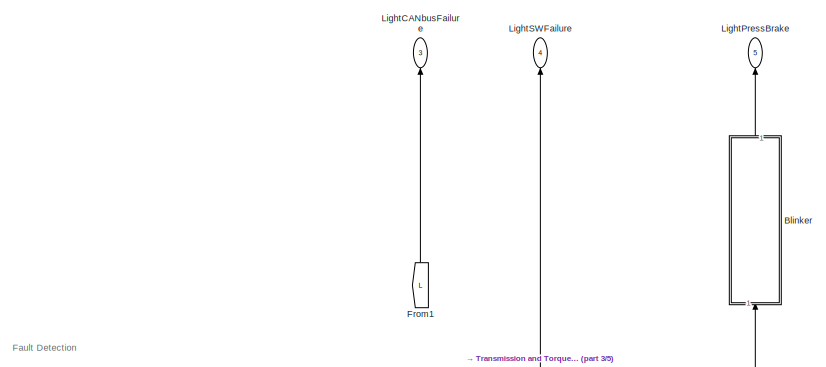
[diagram: root canvas - part 1/5, top left region]
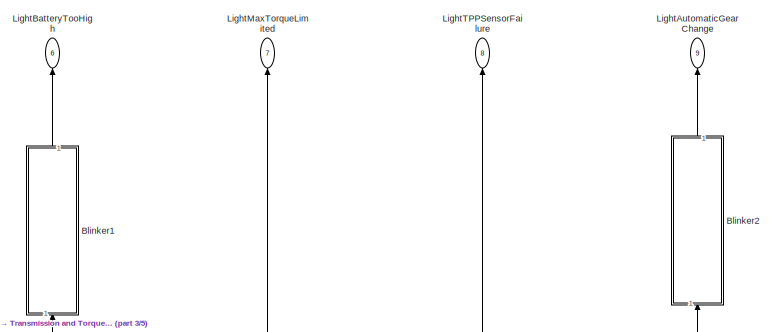
[diagram: root canvas - part 2/5, top center region]
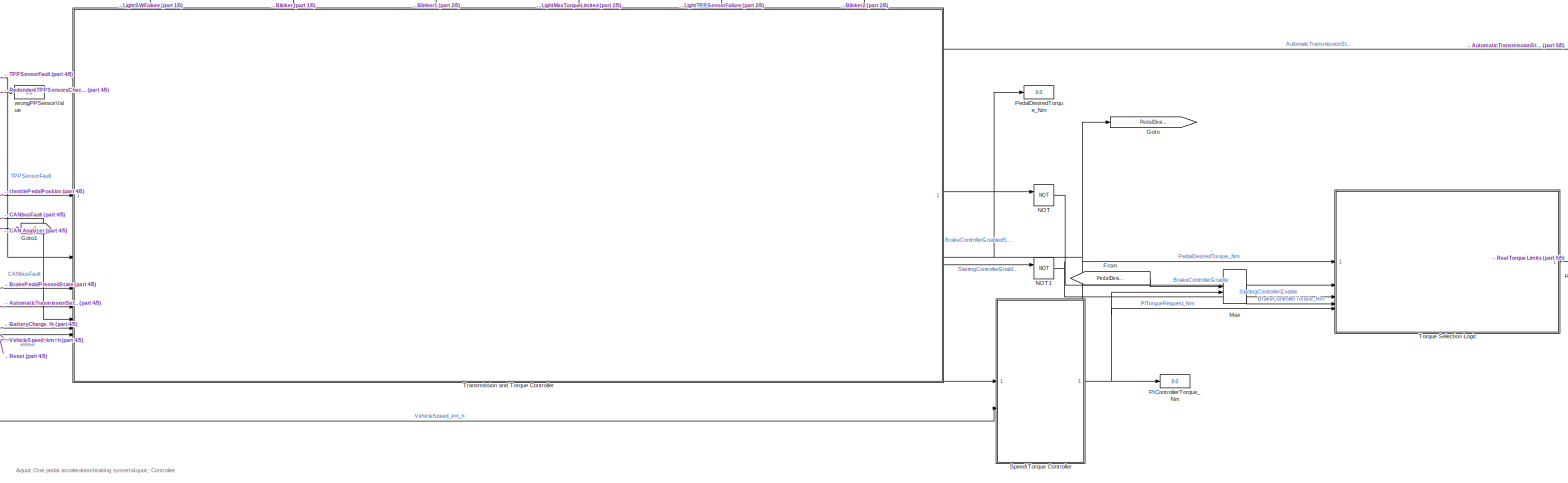
[diagram: root canvas - part 3/5, full width, bottom band]
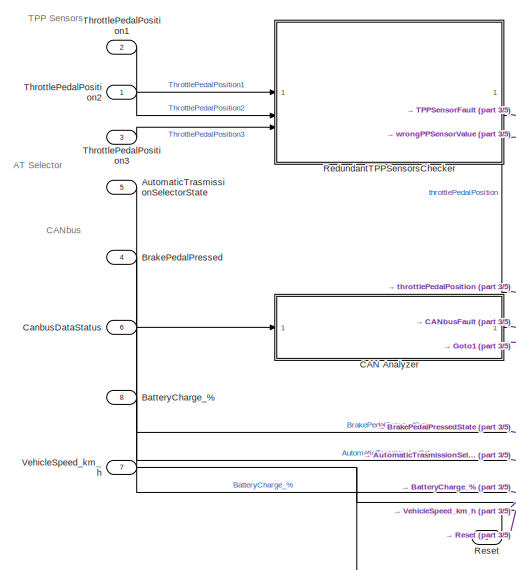
[diagram: root canvas - part 4/5, middle left region]
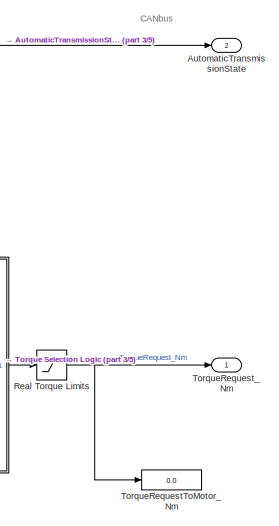
[diagram: root canvas - part 5/5, middle right region]
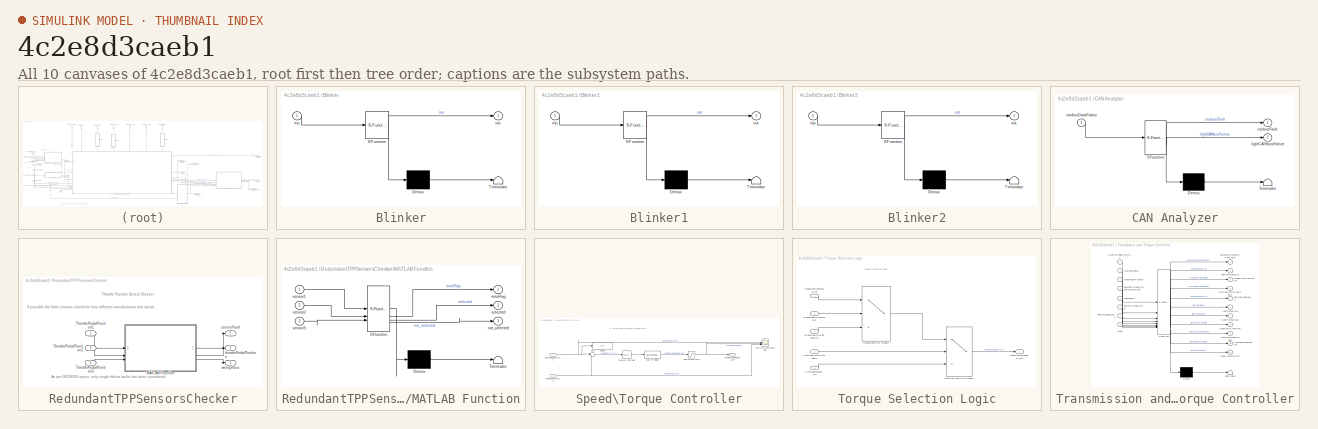
[diagram: thumbnail index - all 10 canvases of the model, root first then tree order]
MODEL slx_4c2e8d3caeb1
KIND model
CONFIG AbsTol = auto
CONFIG EnableMultiTasking = off
CONFIG FixedStep = 1/100
CONFIG MaxStep = auto
CONFIG MinStep = auto
CONFIG RelTol = 1e-3
CONFIG SampleTimeConstraint = Unconstrained
CONFIG SolverName = FixedStepAuto
CONFIG StartTime = 0.0
CONFIG StopTime = 10.0
BLOCK [Outport] AutomaticTransmissionState
  OutDataTypeStr = Enum: TransmissionState
  Port = 2
BLOCK [Inport] AutomaticTrasmissionSelectorState
  OutDataTypeStr = Enum: TransmissionState
  Port = 5
BLOCK [Inport] BatteryCharge_%
  OutDataTypeStr = single
  Port = 8
  Unit = km/h
BLOCK [SubSystem] Blinker
  ErrorFcn = Stateflow.Translate.translate
  NameLocation = right
  PermitHierarchicalResolution = ExplicitOnly
  SFBlockType = Chart
  TreatAsAtomicUnit = on
BLOCK [Demux] Blinker/ Demux 
  Outputs = 1
BLOCK [S-Function] Blinker/ SFunction 
  EnableBusSupport = on
  FunctionName = sf_sfun
  PortCounts = [1 2]
  SFcnIsStateOwnerBlock = off
  SFunctionDeploymentMode = off
  Tag = Stateflow S-Function 4
BLOCK [Terminator] Blinker/ Terminator 
BLOCK [Inport] Blinker/inp
BLOCK [Outport] Blinker/out
BLOCK [SubSystem] Blinker1
  ErrorFcn = Stateflow.Translate.translate
  NameLocation = right
  PermitHierarchicalResolution = ExplicitOnly
  SFBlockType = Chart
  TreatAsAtomicUnit = on
BLOCK [Demux] Blinker1/ Demux 
  Outputs = 1
BLOCK [S-Function] Blinker1/ SFunction 
  EnableBusSupport = on
  FunctionName = sf_sfun
  PortCounts = [1 2]
  SFcnIsStateOwnerBlock = off
  SFunctionDeploymentMode = off
  Tag = Stateflow S-Function 5
BLOCK [Terminator] Blinker1/ Terminator 
BLOCK [Inport] Blinker1/inp
BLOCK [Outport] Blinker1/out
BLOCK [SubSystem] Blinker2
  ErrorFcn = Stateflow.Translate.translate
  NameLocation = right
  PermitHierarchicalResolution = ExplicitOnly
  SFBlockType = Chart
  TreatAsAtomicUnit = on
BLOCK [Demux] Blinker2/ Demux 
  Outputs = 1
BLOCK [S-Function] Blinker2/ SFunction 
  EnableBusSupport = on
  FunctionName = sf_sfun
  PortCounts = [1 2]
  SFcnIsStateOwnerBlock = off
  SFunctionDeploymentMode = off
  Tag = Stateflow S-Function 6
BLOCK [Terminator] Blinker2/ Terminator 
BLOCK [Inport] Blinker2/inp
BLOCK [Outport] Blinker2/out
BLOCK [Inport] BrakePedalPressed
  OutDataTypeStr = boolean
  Port = 4
BLOCK [SubSystem] CAN Analyzer
  ErrorFcn = Stateflow.Translate.translate
  PermitHierarchicalResolution = ExplicitOnly
  SFBlockType = Chart
  TreatAsAtomicUnit = on
BLOCK [Demux] CAN Analyzer/ Demux 
  Outputs = 1
BLOCK [S-Function] CAN Analyzer/ SFunction 
  EnableBusSupport = on
  FunctionName = sf_sfun
  PortCounts = [1 3]
  SFcnIsStateOwnerBlock = off
  SFunctionDeploymentMode = off
  Tag = Stateflow S-Function 1
BLOCK [Terminator] CAN Analyzer/ Terminator 
BLOCK [Inport] CAN Analyzer/canbusDataStatus
BLOCK [Outport] CAN Analyzer/canbusFault
BLOCK [Outport] CAN Analyzer/lightCANbusFailure
  Port = 2
BLOCK [Inport] CanbusDataStatus
  OutDataTypeStr = boolean
  Port = 6
  Unit = km/h
BLOCK [From] From
  GotoTag = PedalDesiredTorque
BLOCK [From] From1
  GotoTag = L
  NameLocation = right
BLOCK [Goto] Goto
  GotoTag = PedalDesiredTorque
BLOCK [Goto] Goto1
  GotoTag = L
BLOCK [Outport] LightAutomaticGearChange
  NameLocation = top
  OutDataTypeStr = boolean
  Port = 9
BLOCK [Outport] LightBatteryTooHigh
  NameLocation = top
  OutDataTypeStr = boolean
  Port = 6
BLOCK [Outport] LightCANbusFailure
  NameLocation = top
  OutDataTypeStr = boolean
  Port = 3
BLOCK [Outport] LightMaxTorqueLimited
  NameLocation = top
  OutDataTypeStr = boolean
  Port = 7
BLOCK [Outport] LightPressBrake
  NameLocation = top
  OutDataTypeStr = boolean
  Port = 5
BLOCK [Outport] LightSWFailure
  NameLocation = top
  OutDataTypeStr = boolean
  Port = 4
BLOCK [Outport] LightTPPSensorFailure
  NameLocation = top
  OutDataTypeStr = boolean
  Port = 8
BLOCK [MinMax] Max
  Function = max
  Inputs = 2
BLOCK [Logic] NOT
  AllPortsSameDT = off
  IconShape = distinctive
  Operator = NOT
  OutDataTypeStr = boolean
BLOCK [Logic] NOT1
  AllPortsSameDT = off
  IconShape = distinctive
  Operator = NOT
  OutDataTypeStr = boolean
BLOCK [Display] PIControllerTorque_Nm
  Decimation = 1
BLOCK [Display] PedalDesiredTorque_Nm
  Decimation = 1
BLOCK [Saturate] Real Torque Limits
  LowerLimit = -MAX_TORQUE_REVERSE
  UpperLimit = MAX_TORQUE
BLOCK [SubSystem] RedundantTPPSensorsChecker
  NameLocation = top
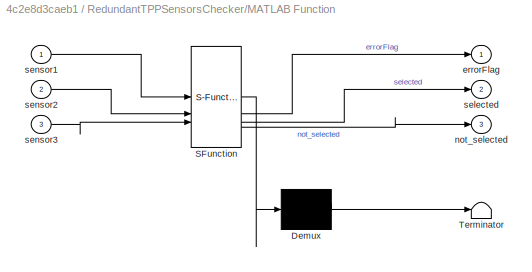
BLOCK [SubSystem] RedundantTPPSensorsChecker/MATLAB Function
  ErrorFcn = Stateflow.Translate.translate
  LibrarySourceBlock = simulink/User-Defined\nFunctions/MATLAB Function
  PermitHierarchicalResolution = ExplicitOnly
  SFBlockType = MATLAB Function
  TreatAsAtomicUnit = on
BLOCK [Demux] RedundantTPPSensorsChecker/MATLAB Function/ Demux 
  Outputs = 1
BLOCK [S-Function] RedundantTPPSensorsChecker/MATLAB Function/ SFunction 
  EnableBusSupport = on
  FunctionName = sf_sfun
  PortCounts = [3 4]
  SFcnIsStateOwnerBlock = off
  SFunctionDeploymentMode = off
  Tag = Stateflow S-Function 2
BLOCK [Terminator] RedundantTPPSensorsChecker/MATLAB Function/ Terminator 
BLOCK [Outport] RedundantTPPSensorsChecker/MATLAB Function/errorFlag
BLOCK [Outport] RedundantTPPSensorsChecker/MATLAB Function/not_selected
  Port = 3
BLOCK [Outport] RedundantTPPSensorsChecker/MATLAB Function/selected
  Port = 2
BLOCK [Inport] RedundantTPPSensorsChecker/MATLAB Function/sensor1
BLOCK [Inport] RedundantTPPSensorsChecker/MATLAB Function/sensor2
  Port = 2
BLOCK [Inport] RedundantTPPSensorsChecker/MATLAB Function/sensor3
  Port = 3
BLOCK [Inport] RedundantTPPSensorsChecker/ThrottlePedalPosition1
BLOCK [Inport] RedundantTPPSensorsChecker/ThrottlePedalPosition2
  Port = 2
BLOCK [Inport] RedundantTPPSensorsChecker/ThrottlePedalPosition3
  Port = 3
BLOCK [Outport] RedundantTPPSensorsChecker/sensorFault
  OutDataTypeStr = boolean
  Port = 2
BLOCK [Outport] RedundantTPPSensorsChecker/throttlePedalPosition
BLOCK [Outport] RedundantTPPSensorsChecker/wrongValue
  Port = 3
BLOCK [Inport] Reset
  OutDataTypeStr = boolean
  Port = 9
  Unit = km/h
BLOCK [SubSystem] Speed\Torque Controller
BLOCK [DataTypeConversion] Speed\Torque Controller/Cast To Single
  OutDataTypeStr = single
  RndMeth = Floor
  SaturateOnIntegerOverflow = off
BLOCK [Inport] Speed\Torque Controller/DesiredSpeed_km_h
BLOCK [Display] Speed\Torque Controller/Display
  Decimation = 1
BLOCK [Outport] Speed\Torque Controller/IdealTorqueRequest_Nm
BLOCK [Saturate] Speed\Torque Controller/Real Torque Limits
  LowerLimit = -MAX_TORQUE_REVERSE
  UpperLimit = MAX_TORQUE
BLOCK [Scope] Speed\Torque Controller/Ref\Out\Command Plot
  Floating = off
  NumInputPorts = 3
  ScopeSpecificationString = Simulink.scopes.TimeScopeBlockCfg('CurrentConfiguration', extmgr.ConfigurationSet(extmgr.Configuration('Core','General UI',true),extmgr.Configuration('Core','Source UI',true),extmgr.Configuration('Sources','WiredSimulink',true,'DataLoggingVariableName','ScopeData2'),extmgr.Configuration('Visuals','Time Domain',true,'SerializedDisplays',{struct('MinYLimReal','-0.97538','MaxYLimReal','81.85781','YLa...<+1531ch>
BLOCK [Sum] Speed\Torque Controller/Sum
  Inputs = |+-
BLOCK [Reference] Speed\Torque Controller/Tuned PI Controller  REF=slpidlib/PID Controller
  LibrarySourceBlock = simulink/Continuous/PID Controller
  SourceBlock = slpidlib/PID Controller
  SourceType = PID 1dof
BLOCK [Inport] Speed\Torque Controller/VehicleSpeed_km_h
  Port = 2
BLOCK [Inport] ThrottlePedalPosition1
  OutDataTypeStr = single
  Port = 2
BLOCK [Inport] ThrottlePedalPosition2
  OutDataTypeStr = single
BLOCK [Inport] ThrottlePedalPosition3
  OutDataTypeStr = single
  Port = 3
BLOCK [SubSystem] Torque Selection Logic
BLOCK [Switch] Torque Selection Logic/BrakeController Enable
  Criteria = u2 > Threshold
  InputSameDT = off
  SaturateOnIntegerOverflow = off
BLOCK [Inport] Torque Selection Logic/BrakeControllerEnable
  Port = 2
BLOCK [Inport] Torque Selection Logic/BrakeControllerTorque_Nm
  Port = 4
BLOCK [Outport] Torque Selection Logic/MotorTorqueRequest_Nm
BLOCK [Inport] Torque Selection Logic/PITorqueRequest_Nm
  Port = 5
BLOCK [Inport] Torque Selection Logic/PedalDesiredTorque_Nm
BLOCK [Switch] Torque Selection Logic/Starting Controller Enable
  Criteria = u2 > Threshold
  InputSameDT = off
  SaturateOnIntegerOverflow = off
BLOCK [Inport] Torque Selection Logic/StartingControllerEnable
  Port = 3
BLOCK [Display] TorqueRequestToMotor_Nm
  Decimation = 1
BLOCK [Outport] TorqueRequest_Nm
  OutDataTypeStr = single
  Unit = N*m
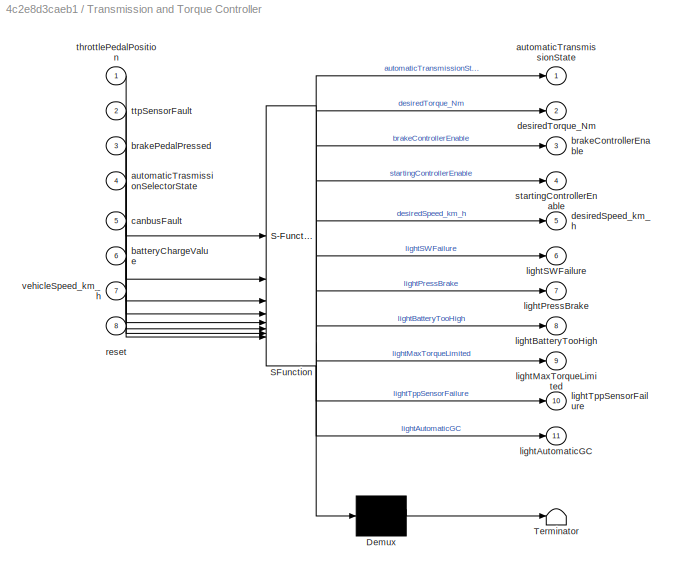
BLOCK [SubSystem] Transmission and Torque Controller
  ErrorFcn = Stateflow.Translate.translate
  PermitHierarchicalResolution = ExplicitOnly
  PortSchema = {"entries":[{"content":{"sides":[{"content":{"connectorIds":["In1","In2","In4","In3","In5","In6","In7","In8"]},"type":"ConnectorPlacement.EquallySpacedRectSide","uuid":"0c8aad20-bedd-441c-a5c9-bebe8b868021"},{"content":{"connectorIds":["Out1","Out2","Out3","Out4","Out5"],"side":"RIGHT"},"type":"ConnectorPlacement.EquallySpacedRectSide","uuid":"1881f9b3-9ea6-444d-9c49-eff5d4926a82"},{"content":{"co...<+353ch>
  SFBlockType = Chart
  TreatAsAtomicUnit = on
BLOCK [Demux] Transmission and Torque Controller/ Demux 
  Outputs = 1
BLOCK [S-Function] Transmission and Torque Controller/ SFunction 
  EnableBusSupport = on
  FunctionName = sf_sfun
  Parameters = MAX_SPEED_BACKWARD,MAX_SPEED_FORWARD,MAX_TORQUE,MAX_TORQUE_REVERSE
  PortCounts = [8 12]
  SFcnIsStateOwnerBlock = off
  SFunctionDeploymentMode = off
  Tag = Stateflow S-Function 3
BLOCK [Terminator] Transmission and Torque Controller/ Terminator 
BLOCK [Outport] Transmission and Torque Controller/automaticTransmissionState
BLOCK [Inport] Transmission and Torque Controller/automaticTrasmissionSelectorState
  Port = 4
BLOCK [Inport] Transmission and Torque Controller/batteryChargeValue
  Port = 6
BLOCK [Outport] Transmission and Torque Controller/brakeControllerEnable
  Port = 3
BLOCK [Inport] Transmission and Torque Controller/brakePedalPressed
  Port = 3
BLOCK [Inport] Transmission and Torque Controller/canbusFault
  Port = 5
BLOCK [Outport] Transmission and Torque Controller/desiredSpeed_km_h
  Port = 5
BLOCK [Outport] Transmission and Torque Controller/desiredTorque_Nm
  Port = 2
BLOCK [Outport] Transmission and Torque Controller/lightAutomaticGC
  Port = 11
BLOCK [Outport] Transmission and Torque Controller/lightBatteryTooHigh
  Port = 8
BLOCK [Outport] Transmission and Torque Controller/lightMaxTorqueLimited
  Port = 9
BLOCK [Outport] Transmission and Torque Controller/lightPressBrake
  Port = 7
BLOCK [Outport] Transmission and Torque Controller/lightSWFailure
  Port = 6
BLOCK [Outport] Transmission and Torque Controller/lightTppSensorFailure
  Port = 10
BLOCK [Inport] Transmission and Torque Controller/reset
  Port = 8
BLOCK [Outport] Transmission and Torque Controller/startingControllerEnable
  Port = 4
BLOCK [Inport] Transmission and Torque Controller/throttlePedalPosition
BLOCK [Inport] Transmission and Torque Controller/ttpSensorFault
  Port = 2
BLOCK [Inport] Transmission and Torque Controller/vehicleSpeed_km_h
  Port = 7
BLOCK [Inport] VehicleSpeed_km_h
  OutDataTypeStr = single
  Port = 7
  Unit = km/h
BLOCK [Display] wrongPPSensorValue
  Decimation = 1
ANNOTATION (root): "One pedal acceleration/braking system" Controller
ANNOTATION (root): AT Selector
ANNOTATION (root): CANbus
ANNOTATION (root): Fault Detection
ANNOTATION (root): TPP Sensors
ANNOTATION RedundantTPPSensorsChecker: Throttle Position Sensor Checker
ANNOTATION RedundantTPPSensorsChecker: As per ISO26262 specs, only single failure faults has been considered.
ANNOTATION RedundantTPPSensorsChecker: If possible the three sensors should be from different manufacturers and operate with different technologies.
ANNOTATION Speed\Torque Controller: PI torque control based on speed error
ANNOTATION Torque Selection Logic: Torque Selection Logic
LINE AutomaticTrasmissionSelectorState:1 -> Transmission and Torque Controller:4
LINE BatteryCharge_%:1 -> Transmission and Torque Controller:6
LINE Blinker1:1 -> LightBatteryTooHigh:1
LINE Blinker2:1 -> LightAutomaticGearChange:1
LINE Blinker:1 -> LightPressBrake:1
LINE BrakePedalPressed:1 -> Transmission and Torque Controller:3
LINE CAN Analyzer:1 -> Transmission and Torque Controller:5
LINE CAN Analyzer:2 -> Goto1:1
LINE CanbusDataStatus:1 -> CAN Analyzer:1
LINE From1:1 -> LightCANbusFailure:1
LINE From:1 -> Max:1
LINE Max:1 -> Torque Selection Logic:4
LINE NOT1:1 -> Torque Selection Logic:3
LINE NOT:1 -> Torque Selection Logic:2
NET Real Torque Limits:1 -> TorqueRequestToMotor_Nm:1, TorqueRequest_Nm:1
LINE RedundantTPPSensorsChecker/MATLAB Function:1 -> RedundantTPPSensorsChecker/sensorFault:1
LINE RedundantTPPSensorsChecker/MATLAB Function:2 -> RedundantTPPSensorsChecker/throttlePedalPosition:1
LINE RedundantTPPSensorsChecker/MATLAB Function:3 -> RedundantTPPSensorsChecker/wrongValue:1
LINE RedundantTPPSensorsChecker/ThrottlePedalPosition1:1 -> RedundantTPPSensorsChecker/MATLAB Function:1
LINE RedundantTPPSensorsChecker/ThrottlePedalPosition2:1 -> RedundantTPPSensorsChecker/MATLAB Function:2
LINE RedundantTPPSensorsChecker/ThrottlePedalPosition3:1 -> RedundantTPPSensorsChecker/MATLAB Function:3
LINE RedundantTPPSensorsChecker:1 -> Transmission and Torque Controller:1
LINE RedundantTPPSensorsChecker:2 -> Transmission and Torque Controller:2
LINE RedundantTPPSensorsChecker:3 -> wrongPPSensorValue:1
LINE Reset:1 -> Transmission and Torque Controller:8
LINE Speed\Torque Controller/Cast To Single:1 -> Speed\Torque Controller/Real Torque Limits:1
NET Speed\Torque Controller/DesiredSpeed_km_h:1 -> Speed\Torque Controller/Display:1, Speed\Torque Controller/Ref\Out\Command Plot:1, Speed\Torque Controller/Sum:1
NET Speed\Torque Controller/Real Torque Limits:1 -> Speed\Torque Controller/IdealTorqueRequest_Nm:1, Speed\Torque Controller/Ref\Out\Command Plot:2
LINE Speed\Torque Controller/Sum:1 -> Speed\Torque Controller/Tuned PI Controller:1
LINE Speed\Torque Controller/Tuned PI Controller:1 -> Speed\Torque Controller/Cast To Single:1
NET Speed\Torque Controller/VehicleSpeed_km_h:1 -> Speed\Torque Controller/Ref\Out\Command Plot:3, Speed\Torque Controller/Sum:2
NET Speed\Torque Controller:1 -> Max:2, PIControllerTorque_Nm:1, Torque Selection Logic:5
LINE ThrottlePedalPosition1:1 -> RedundantTPPSensorsChecker:1
LINE ThrottlePedalPosition2:1 -> RedundantTPPSensorsChecker:2
LINE ThrottlePedalPosition3:1 -> RedundantTPPSensorsChecker:3
LINE Torque Selection Logic/BrakeController Enable:1 -> Torque Selection Logic/Starting Controller Enable:1
LINE Torque Selection Logic/BrakeControllerEnable:1 -> Torque Selection Logic/BrakeController Enable:2
LINE Torque Selection Logic/BrakeControllerTorque_Nm:1 -> Torque Selection Logic/BrakeController Enable:3
LINE Torque Selection Logic/PITorqueRequest_Nm:1 -> Torque Selection Logic/Starting Controller Enable:3
LINE Torque Selection Logic/PedalDesiredTorque_Nm:1 -> Torque Selection Logic/BrakeController Enable:1
LINE Torque Selection Logic/Starting Controller Enable:1 -> Torque Selection Logic/MotorTorqueRequest_Nm:1
LINE Torque Selection Logic/StartingControllerEnable:1 -> Torque Selection Logic/Starting Controller Enable:2
LINE Torque Selection Logic:1 -> Real Torque Limits:1
LINE Transmission and Torque Controller:1 -> AutomaticTransmissionState:1
LINE Transmission and Torque Controller:10 -> LightTPPSensorFailure:1
LINE Transmission and Torque Controller:11 -> Blinker2:1
NET Transmission and Torque Controller:2 -> Goto:1, PedalDesiredTorque_Nm:1, Torque Selection Logic:1
LINE Transmission and Torque Controller:3 -> NOT:1
LINE Transmission and Torque Controller:4 -> NOT1:1
LINE Transmission and Torque Controller:5 -> Speed\Torque Controller:1
LINE Transmission and Torque Controller:6 -> LightSWFailure:1
LINE Transmission and Torque Controller:7 -> Blinker:1
LINE Transmission and Torque Controller:8 -> Blinker1:1
LINE Transmission and Torque Controller:9 -> LightMaxTorqueLimited:1
NET VehicleSpeed_km_h:1 -> Speed\Torque Controller:2, Transmission and Torque Controller:7
note: NET lines group one-source signal fan-out (src -> all destinations, sorted); 1:1 wires keep LINE
CHART CAN Analyzer states=5 transitions=4
  STATE_LABEL '<!DOCTYPE HTML PUBLIC "-//W3C//DTD HTML 4.0//EN" "http://www.w3.org/TR/REC-html40/strict.dtd">\n<html><head><meta name="qrichtext" content="1" /><style type="text/css">\np, li { white-space: pre-wrap; }\n</style></head><body align="left" style=" font-family:\'Helvetica\'; font-size:12px; font-weight:400; font-style:normal;">\n<p align="left" style=" margin-top:0px; margin-bottom:0px; margin-left:0px; ma...<+148ch>'
  STATE_LABEL 'Working\nentry:\nlightCANbusFailure=false;\ncanbusFault=false;'
  STATE_LABEL 'NoSignal'
  STATE_LABEL 'For better safety, the fault can be\nresetted only by restarting the car,\neven if the CANbus becomes functioning\nagain during use '
  STATE_LABEL 'Fault\nentry:\nlightCANbusFailure=true;\ncanbusFault=true;'
CHART RedundantTPPSensorsChecker/MATLAB Function states=1 transitions=1
  STATE_LABEL 'eML_blk_kernel()'
  STATE_LABEL 'SCRIPT:\nfunction [errorFlag, selected, not_selected] = selectSensors(sensor1, sensor2, sensor3)\n    errorFlag = true;\n    if sensor1 == sensor2 && sensor2 == sensor3\n        selected = sensor1;\n        not_selected = single(-1);\n        errorFlag = false;\n    elseif sensor1 == sensor2\n        selected = sensor1;\n        not_selected = sensor3;\n    elseif sensor2 == sensor3\n        selected = senso...<+117ch>'
CHART Transmission and Torque Controller states=25 transitions=60
  STATE_LABEL 'brakeLightToggle'
  STATE_LABEL '% LightToggle'
  STATE_LABEL '[lightPressBrake==true&&brakePedalPressed==1]'
  STATE_LABEL '{lightPressBrake=false;}'
  STATE_LABEL 'starting(speedValue)'
  STATE_LABEL '% BrakeReselasedCheck'
  STATE_LABEL '[brakePedalPressed==0]'
  STATE_LABEL '{desiredSpeed_km_h=0;}'
  STATE_LABEL '{desiredSpeed_km_h=speedValue;}'
  STATE_LABEL '<!DOCTYPE HTML PUBLIC "-//W3C//DTD HTML 4.0//EN" "http://www.w3.org/TR/REC-html40/strict.dtd">\n<html><head><meta name="qrichtext" content="1" /><style type="text/css">\np, li { white-space: pre-wrap; }\n</style></head><body align="left" style=" font-family:\'Helvetica\'; font-size:12px; font-weight:400; font-style:normal;">\n<p align="left" style=" margin-top:0px; margin-bottom:0px; margin-left:0px; ma...<+213ch>'
  STATE_LABEL 'Working\nentry:\nlightTppSensorFailure=false;\nlightMaxTorqueLimited=false;\nlightSWFailure=false;'
  STATE_LABEL 'Park\nentry:\nautomaticTransmissionState=Park;\n%activate EHandbrake\nduring:\nbrakeControllerEnable=false;\ndesiredTorque_Nm=0;'
  STATE_LABEL 'Neutral\nentry:\nautomaticTransmissionState=Neutral;\nstartingControllerEnable=false;\nduring:\ndesiredTorque_Nm=0;\nbrakeControllerEnable=false;'
  STATE_LABEL 'Drive\nentry:\nautomaticTransmissionState=Drive;\nstartingControllerEnable=false;\nlightAutomaticGC=false;\nlightBatteryTooHigh=false;\nduring:\ndesiredTorque_Nm=throttlePedalPosition*MAX_TORQUE;\nbrakeLightToggle()'
  STATE_LABEL 'Driving\nduring:\nbrakeControllerEnable=false;'
  STATE_LABEL 'StopAndStart\nentry:\n%activate EHandbrake\nduring:\nstartingControllerEnable=true;\nstarting(STARTING_SPEED)\nexit:\nstartingControllerEnable=false;'
  STATE_LABEL '[abs(vehicleSpeed_km_h)<=0.5&&brakePedalPressed==true&&canbusFault~=1]'
  STATE_LABEL '[throttlePedalPosition~=0&&brakePedalPressed==false]'
  STATE_LABEL '[canbusFault==1]{lightPressBrake=true;}'
  STATE_LABEL '[vehicleSpeed_km_h>STARTING_SPEED+1]{lightPressBrake=true;}'
  STATE_LABEL 'Brake\nentry:\nautomaticTransmissionState=Brake;\nstartingControllerEnable=false;\nduring:\nbrakeLightToggle()\n'
  STATE_LABEL 'RegenerativeBraking\nduring:\ndesiredTorque_Nm=-MAX_TORQUE_REVERSE*(1-3*throttlePedalPosition);\ndesiredSpeed_km_h=0;\nlightPressBrake=false;\nbrakeControllerEnable=true;'
  STATE_LABEL 'Acceleration\nduring:\ndesiredTorque_Nm=MAX_TORQUE*3/2*(throttlePedalPosition-1/3);\nbrakeControllerEnable=false;'
  STATE_LABEL 'StopAndStart\nentry:\n%activate EHandbrake\nduring:\ndesiredTorque_Nm=-MAX_TORQUE*(1-3*throttlePedalPosition);\nstartingControllerEnable=true;\nstarting(STARTING_SPEED)\nexit:\nstartingControllerEnable=true;'
  STATE_LABEL '[throttlePedalPosition<1/3]'
  STATE_LABEL '[throttlePedalPosition>=1/3]'
  STATE_LABEL '[abs(vehicleSpeed_km_h)<=0.5&&brakePedalPressed==true]'
  STATE_LABEL '[vehicleSpeed_km_h>STARTING_SPEED+1]\n{lightPressBrake=true;}'
  STATE_LABEL '[throttlePedalPosition>=1/3&&brakePedalPressed==false]'
  STATE_LABEL 'Reverse\nentry:\nautomaticTransmissionState=Reverse;\nduring:\ndesiredTorque_Nm=-throttlePedalPosition*MAX_TORQUE_REVERSE;\nbrakeControllerEnable=false;'
  STATE_LABEL '[automaticTrasmissionSelectorState==4&&throttlePedalPosition>1/3&&batteryChargeValue>BATTERY_SAFE_LEVEL_PERCENTAGE]\n{lightBatteryTooHigh=true;}'
  STATE_LABEL '[automaticTrasmissionSelectorState==4&&canbusFault==1]'
  STATE_LABEL '[automaticTrasmissionSelectorState>=3&&brakePedalPressed==true&&vehicleSpeed_km_h>-5]'
  STATE_LABEL '[automaticTrasmissionSelectorState==0&&brakePedalPressed==true&&abs(vehicleSpeed_km_h)<=5]'
  STATE_LABEL '[automaticTrasmissionSelectorState~=0&&brakePedalPressed==true]'
  STATE_LABEL '[automaticTrasmissionSelectorState<3]'
  STATE_LABEL '[automaticTrasmissionSelectorState==1&&brakePedalPressed==true&&vehicleSpeed_km_h<=5]'
  STATE_LABEL '[automaticTrasmissionSelectorState~=1]'
  STATE_LABEL '[automaticTrasmissionSelectorState==4&&throttlePedalPosition>1/3]'
  STATE_LABEL '[automaticTrasmissionSelectorState~=4]'
CHART Blinker states=4 transitions=7
  STATE_LABEL 'Initial'
  STATE_LABEL 'On\nentry:\nout=true;'
  STATE_LABEL 'Blink'
  STATE_LABEL 'Off\nentry:\nout=false;'
CHART Blinker1 states=4 transitions=7
  STATE_LABEL 'Initial'
  STATE_LABEL 'On\nentry:\nout=true;'
  STATE_LABEL 'Blink'
  STATE_LABEL 'Off\nentry:\nout=false;'
CHART Blinker2 states=4 transitions=7
  STATE_LABEL 'Initial'
  STATE_LABEL 'On\nentry:\nout=true;'
  STATE_LABEL 'Blink'
  STATE_LABEL 'Off\nentry:\nout=false;'
CHART  states=0 transitions=0
CHART  states=0 transitions=0
CHART  states=0 transitions=0
CHART  states=0 transitions=0
CHART  states=0 transitions=0
CHART  states=0 transitions=0
